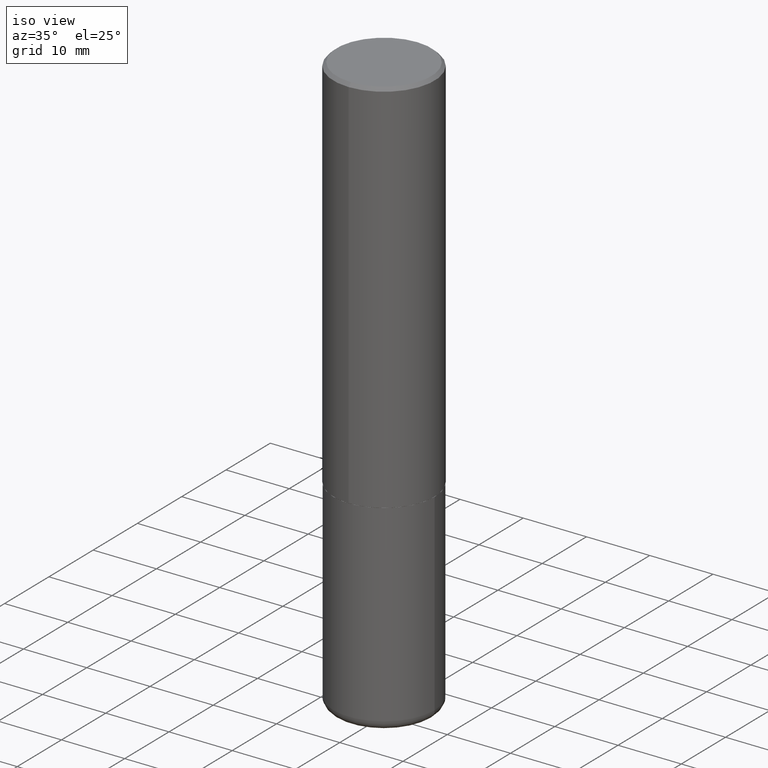
[diagram: clean part render]
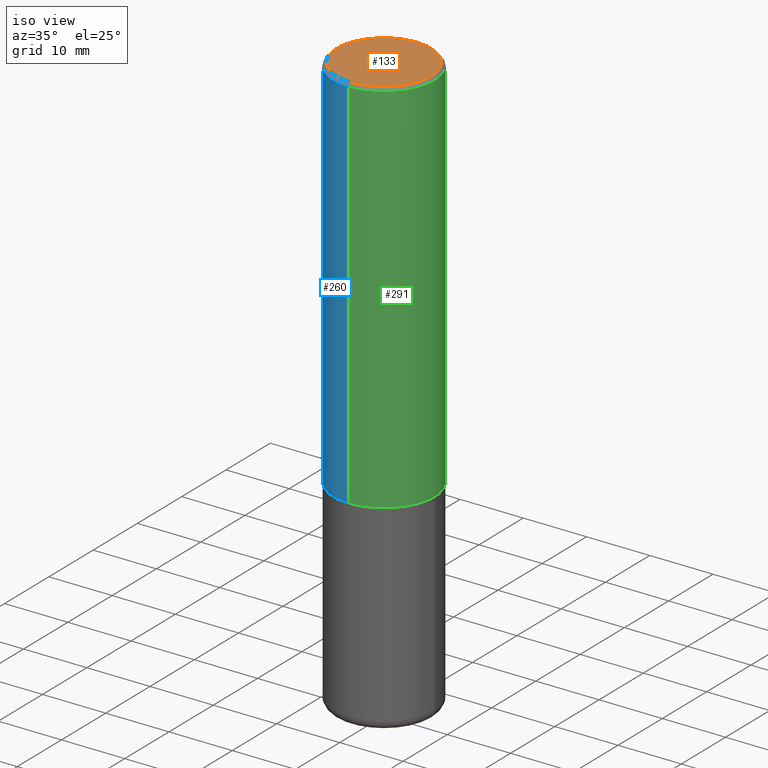
[diagram: same view with three faces highlighted in distinct colors, each labeled with its STEP entity id]
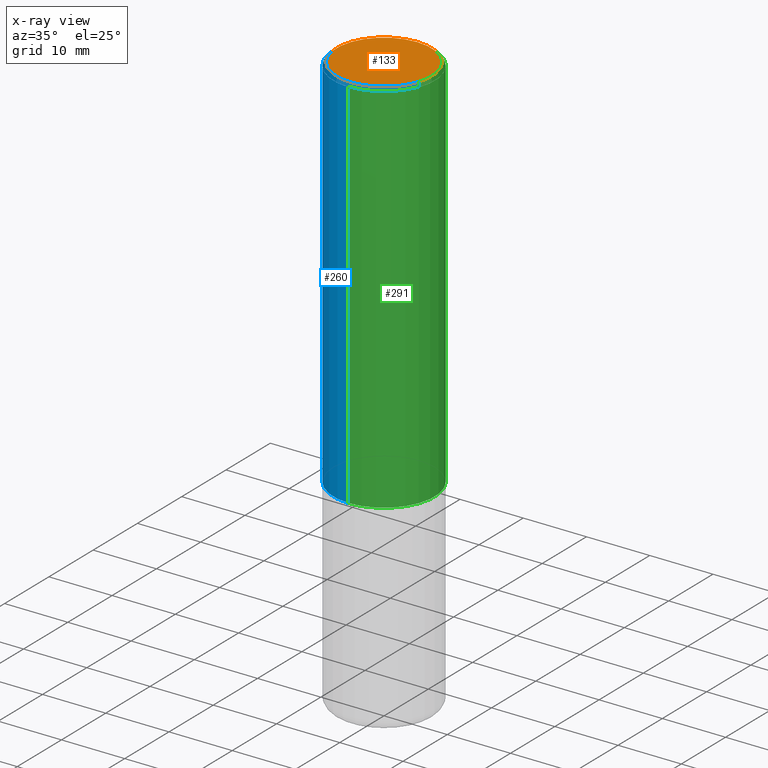
[diagram: x-ray of the same camera — body ghosted, the three highlighted faces saturated]
A machine part, iso view with three faces highlighted in distinct colors.
The next image is the same camera in x-ray (body ghosted, the three faces saturated) — at least one of them is partly hidden behind the body in this view.
Their STEP definitions:

[orange] entity #133 — the highlighted planar face has unit normal (0, -0, -1).
#28 = FACE_OUTER_BOUND ( 'NONE', #208, .T. ) ;
#34 = CARTESIAN_POINT ( 'NONE',  ( -6.043336042495066308E-45, 8.618394751845776021E-31, 2.469824444050611971E-16 ) ) ;
#47 = AXIS2_PLACEMENT_3D ( 'NONE', #412, #154, #226 ) ;
#54 = EDGE_CURVE ( 'NONE', #97, #410, #287, .T. ) ;
#87 = CIRCLE ( 'NONE', #331, 0.2949499999999997679 ) ;
#94 = DIRECTION ( 'NONE',  ( -6.982962677686265922E-15, -1.000000000000000000, 3.489476660013640060E-15 ) ) ;
#97 = VERTEX_POINT ( 'NONE', #289 ) ;
#133 = ADVANCED_FACE ( 'NONE', ( #28 ), #382, .F. ) ;
#136 = ORIENTED_EDGE ( 'NONE', *, *, #324, .T. ) ;
#148 = CARTESIAN_POINT ( 'NONE',  ( 2.129454468560426178E-15, 0.2949499999999997679, -7.822386964659611296E-16 ) ) ;
#154 = DIRECTION ( 'NONE',  ( 2.446868665929854653E-29, -3.489476660013640060E-15, -1.000000000000000000 ) ) ;
#208 = EDGE_LOOP ( 'NONE', ( #136, #240 ) ) ;
#224 = DIRECTION ( 'NONE',  ( -2.446868665929855214E-29, 3.489476660013640060E-15, 1.000000000000000000 ) ) ;
#226 = DIRECTION ( 'NONE',  ( 6.982962677686265922E-15, 1.000000000000000000, -3.489476660013640060E-15 ) ) ;
#240 = ORIENTED_EDGE ( 'NONE', *, *, #54, .T. ) ;
#250 = DIRECTION ( 'NONE',  ( -6.982962677686265922E-15, -1.000000000000000000, 3.489476660013640060E-15 ) ) ;
#287 = CIRCLE ( 'NONE', #390, 0.2949499999999997679 ) ;
#289 = CARTESIAN_POINT ( 'NONE',  ( -2.092108864420427242E-15, -0.2949499999999997679, 1.276203585276083425E-15 ) ) ;
#324 = EDGE_CURVE ( 'NONE', #410, #97, #87, .T. ) ;
#331 = AXIS2_PLACEMENT_3D ( 'NONE', #365, #389, #94 ) ;
#365 = CARTESIAN_POINT ( 'NONE',  ( -6.043336042495066308E-45, 8.618394751845776021E-31, 2.469824444050611971E-16 ) ) ;
#382 = PLANE ( 'NONE',  #47 ) ;
#389 = DIRECTION ( 'NONE',  ( -2.446868665929855214E-29, 3.489476660013640060E-15, 1.000000000000000000 ) ) ;
#390 = AXIS2_PLACEMENT_3D ( 'NONE', #34, #224, #250 ) ;
#410 = VERTEX_POINT ( 'NONE', #148 ) ;
#412 = CARTESIAN_POINT ( 'NONE',  ( 2.059624841783562486E-15, 0.2949499999999997679, -9.057299186684915802E-16 ) ) ;

[blue] entity #260 — the highlighted cylindrical surface (partial cylindrical patch) has radius 7.9997 mm, axis along (-0, 0, 1).
#2 = CARTESIAN_POINT ( 'NONE',  ( 2.199284095337289871E-15, 0.3149499999999999522, -0.02000000000000116615 ) ) ;
#6 = DIRECTION ( 'NONE',  ( -2.446868665929855214E-29, 3.489476660013640060E-15, 1.000000000000000000 ) ) ;
#7 = EDGE_LOOP ( 'NONE', ( #314, #278, #398, #179 ) ) ;
#11 = DIRECTION ( 'NONE',  ( -6.982962677686264344E-15, -1.000000000000000000, 3.489476660013640060E-15 ) ) ;
#24 = VERTEX_POINT ( 'NONE', #308 ) ;
#35 = DIRECTION ( 'NONE',  ( -2.446868665929855494E-29, 3.489476660013640060E-15, 1.000000000000000000 ) ) ;
#41 = CARTESIAN_POINT ( 'NONE',  ( 4.893737331859726542E-31, -6.978953320027303983E-17, -0.02000000000000006981 ) ) ;
#45 = CARTESIAN_POINT ( 'NONE',  ( -2.160713844398143363E-15, -0.3149500000000000632, -0.01999999999999896999 ) ) ;
#56 = CARTESIAN_POINT ( 'NONE',  ( 5.777546293993573265E-29, -8.239352289624205249E-15, -2.361199999999999743 ) ) ;
#132 = DIRECTION ( 'NONE',  ( -6.982962677686265922E-15, -1.000000000000000000, 3.483117034309591132E-15 ) ) ;
#135 = CARTESIAN_POINT ( 'NONE',  ( 2.237854346276435985E-15, 0.3149500000000001743, -1.099010674071296500E-15 ) ) ;
#137 = LINE ( 'NONE', #135, #259 ) ;
#145 = VECTOR ( 'NONE', #35, 39.37007874015748143 ) ;
#167 = EDGE_CURVE ( 'NONE', #282, #24, #177, .T. ) ;
#177 = CIRCLE ( 'NONE', #346, 0.3149500000000002853 ) ;
#179 = ORIENTED_EDGE ( 'NONE', *, *, #369, .F. ) ;
#193 = LINE ( 'NONE', #228, #145 ) ;
#198 = CARTESIAN_POINT ( 'NONE',  ( 2.237854346276465567E-15, 0.3149499999999920141, -2.361200000000000632 ) ) ;
#201 = CYLINDRICAL_SURFACE ( 'NONE', #414, 0.3149500000000001743 ) ;
#214 = AXIS2_PLACEMENT_3D ( 'NONE', #41, #6, #132 ) ;
#222 = EDGE_CURVE ( 'NONE', #282, #231, #137, .T. ) ;
#228 = CARTESIAN_POINT ( 'NONE',  ( -2.199284095337290265E-15, -0.3149500000000001743, 1.099010674071296500E-15 ) ) ;
#231 = VERTEX_POINT ( 'NONE', #2 ) ;
#235 = CIRCLE ( 'NONE', #214, 0.3149500000000000077 ) ;
#259 = VECTOR ( 'NONE', #395, 39.37007874015748143 ) ;
#260 = ADVANCED_FACE ( 'NONE', ( #364 ), #201, .T. ) ;
#264 = CARTESIAN_POINT ( 'NONE',  ( 0.000000000000000000, 0.000000000000000000, 0.000000000000000000 ) ) ;
#267 = DIRECTION ( 'NONE',  ( -2.446868665929855214E-29, 3.489476660013640060E-15, 1.000000000000000000 ) ) ;
#278 = ORIENTED_EDGE ( 'NONE', *, *, #167, .T. ) ;
#282 = VERTEX_POINT ( 'NONE', #198 ) ;
#293 = VERTEX_POINT ( 'NONE', #45 ) ;
#308 = CARTESIAN_POINT ( 'NONE',  ( -2.199284095337233467E-15, -0.3149500000000085564, -2.361199999999998411 ) ) ;
#314 = ORIENTED_EDGE ( 'NONE', *, *, #222, .F. ) ;
#319 = DIRECTION ( 'NONE',  ( -6.982962677686265922E-15, -1.000000000000000000, 3.469564049740290009E-15 ) ) ;
#329 = EDGE_CURVE ( 'NONE', #24, #293, #193, .T. ) ;
#346 = AXIS2_PLACEMENT_3D ( 'NONE', #56, #383, #319 ) ;
#364 = FACE_OUTER_BOUND ( 'NONE', #7, .T. ) ;
#369 = EDGE_CURVE ( 'NONE', #231, #293, #235, .T. ) ;
#383 = DIRECTION ( 'NONE',  ( -2.446868665929855214E-29, 3.489476660013640060E-15, 1.000000000000000000 ) ) ;
#395 = DIRECTION ( 'NONE',  ( -2.446868665929855494E-29, 3.489476660013640060E-15, 1.000000000000000000 ) ) ;
#398 = ORIENTED_EDGE ( 'NONE', *, *, #329, .T. ) ;
#414 = AXIS2_PLACEMENT_3D ( 'NONE', #264, #267, #11 ) ;

[green] entity #291 — the highlighted cylindrical surface (partial cylindrical patch) has radius 7.9997 mm, axis along (-0, 0, 1).
#2 = CARTESIAN_POINT ( 'NONE',  ( 2.199284095337289871E-15, 0.3149499999999999522, -0.02000000000000116615 ) ) ;
#10 = EDGE_CURVE ( 'NONE', #24, #282, #75, .T. ) ;
#22 = DIRECTION ( 'NONE',  ( -6.982962677686265922E-15, -1.000000000000000000, 3.469564049740290009E-15 ) ) ;
#24 = VERTEX_POINT ( 'NONE', #308 ) ;
#35 = DIRECTION ( 'NONE',  ( -2.446868665929855494E-29, 3.489476660013640060E-15, 1.000000000000000000 ) ) ;
#39 = AXIS2_PLACEMENT_3D ( 'NONE', #191, #199, #335 ) ;
#43 = CARTESIAN_POINT ( 'NONE',  ( 0.000000000000000000, 0.000000000000000000, 0.000000000000000000 ) ) ;
#45 = CARTESIAN_POINT ( 'NONE',  ( -2.160713844398143363E-15, -0.3149500000000000632, -0.01999999999999896999 ) ) ;
#75 = CIRCLE ( 'NONE', #370, 0.3149500000000002853 ) ;
#104 = DIRECTION ( 'NONE',  ( -6.982962677686264344E-15, -1.000000000000000000, 3.489476660013640060E-15 ) ) ;
#135 = CARTESIAN_POINT ( 'NONE',  ( 2.237854346276435985E-15, 0.3149500000000001743, -1.099010674071296500E-15 ) ) ;
#137 = LINE ( 'NONE', #135, #259 ) ;
#145 = VECTOR ( 'NONE', #35, 39.37007874015748143 ) ;
#147 = ORIENTED_EDGE ( 'NONE', *, *, #222, .T. ) ;
#156 = CIRCLE ( 'NONE', #39, 0.3149500000000000077 ) ;
#160 = AXIS2_PLACEMENT_3D ( 'NONE', #43, #165, #104 ) ;
#165 = DIRECTION ( 'NONE',  ( -2.446868665929855214E-29, 3.489476660013640060E-15, 1.000000000000000000 ) ) ;
#191 = CARTESIAN_POINT ( 'NONE',  ( 4.893737331859726542E-31, -6.978953320027303983E-17, -0.02000000000000006981 ) ) ;
#193 = LINE ( 'NONE', #228, #145 ) ;
#198 = CARTESIAN_POINT ( 'NONE',  ( 2.237854346276465567E-15, 0.3149499999999920141, -2.361200000000000632 ) ) ;
#199 = DIRECTION ( 'NONE',  ( -2.446868665929855214E-29, 3.489476660013640060E-15, 1.000000000000000000 ) ) ;
#222 = EDGE_CURVE ( 'NONE', #282, #231, #137, .T. ) ;
#228 = CARTESIAN_POINT ( 'NONE',  ( -2.199284095337290265E-15, -0.3149500000000001743, 1.099010674071296500E-15 ) ) ;
#231 = VERTEX_POINT ( 'NONE', #2 ) ;
#259 = VECTOR ( 'NONE', #395, 39.37007874015748143 ) ;
#268 = ORIENTED_EDGE ( 'NONE', *, *, #10, .T. ) ;
#275 = EDGE_CURVE ( 'NONE', #293, #231, #156, .T. ) ;
#282 = VERTEX_POINT ( 'NONE', #198 ) ;
#291 = ADVANCED_FACE ( 'NONE', ( #397 ), #336, .T. ) ;
#293 = VERTEX_POINT ( 'NONE', #45 ) ;
#305 = DIRECTION ( 'NONE',  ( -2.446868665929855214E-29, 3.489476660013640060E-15, 1.000000000000000000 ) ) ;
#308 = CARTESIAN_POINT ( 'NONE',  ( -2.199284095337233467E-15, -0.3149500000000085564, -2.361199999999998411 ) ) ;
#329 = EDGE_CURVE ( 'NONE', #24, #293, #193, .T. ) ;
#334 = EDGE_LOOP ( 'NONE', ( #268, #147, #348, #394 ) ) ;
#335 = DIRECTION ( 'NONE',  ( -6.982962677686265922E-15, -1.000000000000000000, 3.483117034309591132E-15 ) ) ;
#336 = CYLINDRICAL_SURFACE ( 'NONE', #160, 0.3149500000000001743 ) ;
#348 = ORIENTED_EDGE ( 'NONE', *, *, #275, .F. ) ;
#370 = AXIS2_PLACEMENT_3D ( 'NONE', #408, #305, #22 ) ;
#394 = ORIENTED_EDGE ( 'NONE', *, *, #329, .F. ) ;
#395 = DIRECTION ( 'NONE',  ( -2.446868665929855494E-29, 3.489476660013640060E-15, 1.000000000000000000 ) ) ;
#397 = FACE_OUTER_BOUND ( 'NONE', #334, .T. ) ;
#408 = CARTESIAN_POINT ( 'NONE',  ( 5.777546293993573265E-29, -8.239352289624205249E-15, -2.361199999999999743 ) ) ;